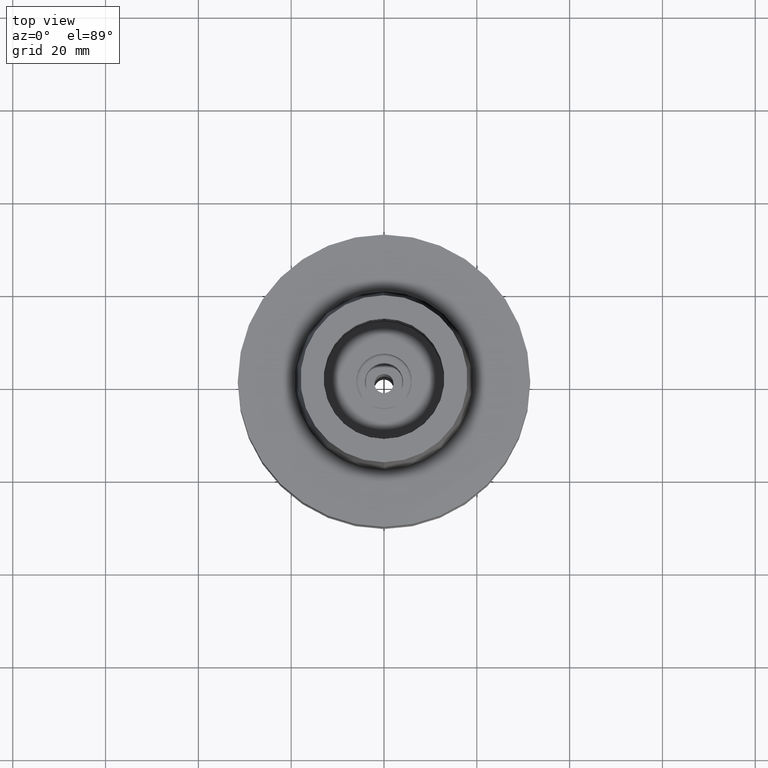
[diagram: clean part render]
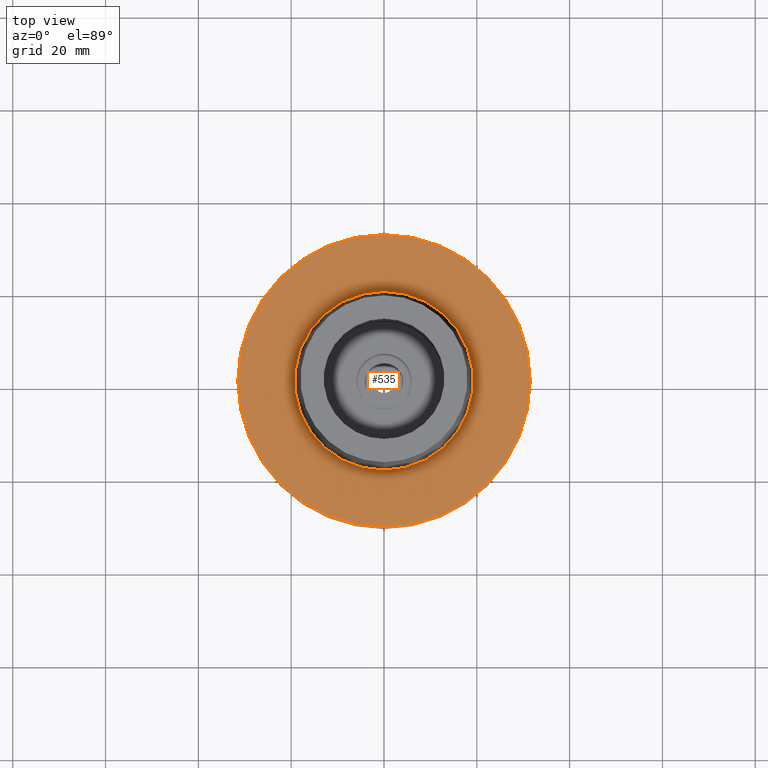
[diagram: same view with one face highlighted and labeled with its STEP entity id]
A machine part, top view. The second image highlights one B-rep face of the part: STEP entity #535.
In plain terms, the highlighted planar face has unit normal (0, 0, 1).
Its self-contained STEP definition (entity closure, byte-faithful):
#23 = EDGE_LOOP ( 'NONE', ( #2075, #1552 ) ) ;
#180 = CIRCLE ( 'NONE', #2668, 31.50000000000000000 ) ;
#184 = CIRCLE ( 'NONE', #1445, 31.50000000000000000 ) ;
#242 = DIRECTION ( 'NONE',  ( 0.0000000000000000000, 0.0000000000000000000, -1.000000000000000000 ) ) ;
#349 = CARTESIAN_POINT ( 'NONE',  ( 0.0000000000000000000, 31.50000000000000000, 1.705302565823999875E-13 ) ) ;
#535 = ADVANCED_FACE ( 'NONE', ( #690, #1974 ), #2398, .T. ) ;
#559 = DIRECTION ( 'NONE',  ( 0.0000000000000000000, -1.000000000000000000, 0.0000000000000000000 ) ) ;
#690 = FACE_OUTER_BOUND ( 'NONE', #828, .T. ) ;
#828 = EDGE_LOOP ( 'NONE', ( #1559, #2602 ) ) ;
#931 = CARTESIAN_POINT ( 'NONE',  ( 0.0000000000000000000, -19.24999954280000125, 2.664535259100000578E-13 ) ) ;
#972 = VERTEX_POINT ( 'NONE', #1027 ) ;
#1027 = CARTESIAN_POINT ( 'NONE',  ( 0.0000000000000000000, -31.50000000000000000, 1.705302565823999875E-13 ) ) ;
#1092 = VERTEX_POINT ( 'NONE', #1130 ) ;
#1130 = CARTESIAN_POINT ( 'NONE',  ( 0.0000000000000000000, 19.24999954280000125, 2.664535259100000578E-13 ) ) ;
#1251 = AXIS2_PLACEMENT_3D ( 'NONE', #1780, #2608, #1548 ) ;
#1253 = CIRCLE ( 'NONE', #1660, 19.24999954280000125 ) ;
#1279 = EDGE_CURVE ( 'NONE', #2609, #1092, #1253, .T. ) ;
#1445 = AXIS2_PLACEMENT_3D ( 'NONE', #2429, #242, #2629 ) ;
#1459 = CARTESIAN_POINT ( 'NONE',  ( 0.0000000000000000000, 0.0000000000000000000, 3.979039320256999774E-13 ) ) ;
#1548 = DIRECTION ( 'NONE',  ( 1.000000000000000000, 0.0000000000000000000, 0.0000000000000000000 ) ) ;
#1552 = ORIENTED_EDGE ( 'NONE', *, *, #1279, .F. ) ;
#1559 = ORIENTED_EDGE ( 'NONE', *, *, #2643, .F. ) ;
#1660 = AXIS2_PLACEMENT_3D ( 'NONE', #1841, #2713, #2027 ) ;
#1694 = CARTESIAN_POINT ( 'NONE',  ( 0.0000000000000000000, 0.0000000000000000000, 1.705302565823999875E-13 ) ) ;
#1780 = CARTESIAN_POINT ( 'NONE',  ( 0.0000000000000000000, 0.0000000000000000000, 0.0000000000000000000 ) ) ;
#1841 = CARTESIAN_POINT ( 'NONE',  ( 0.0000000000000000000, 0.0000000000000000000, 3.979039320256999774E-13 ) ) ;
#1847 = CIRCLE ( 'NONE', #2171, 19.24999954280000125 ) ;
#1905 = EDGE_CURVE ( 'NONE', #972, #2166, #180, .T. ) ;
#1974 = FACE_BOUND ( 'NONE', #23, .T. ) ;
#2027 = DIRECTION ( 'NONE',  ( 0.0000000000000000000, -1.000000000000000000, 0.0000000000000000000 ) ) ;
#2075 = ORIENTED_EDGE ( 'NONE', *, *, #2456, .F. ) ;
#2166 = VERTEX_POINT ( 'NONE', #349 ) ;
#2171 = AXIS2_PLACEMENT_3D ( 'NONE', #1459, #2331, #2358 ) ;
#2331 = DIRECTION ( 'NONE',  ( 0.0000000000000000000, 0.0000000000000000000, 1.000000000000000000 ) ) ;
#2358 = DIRECTION ( 'NONE',  ( 0.0000000000000000000, 1.000000000000000000, 0.0000000000000000000 ) ) ;
#2398 = PLANE ( 'NONE',  #1251 ) ;
#2429 = CARTESIAN_POINT ( 'NONE',  ( 0.0000000000000000000, 0.0000000000000000000, 1.705302565823999875E-13 ) ) ;
#2456 = EDGE_CURVE ( 'NONE', #1092, #2609, #1847, .T. ) ;
#2556 = DIRECTION ( 'NONE',  ( 0.0000000000000000000, 0.0000000000000000000, -1.000000000000000000 ) ) ;
#2602 = ORIENTED_EDGE ( 'NONE', *, *, #1905, .F. ) ;
#2608 = DIRECTION ( 'NONE',  ( 0.0000000000000000000, 0.0000000000000000000, 1.000000000000000000 ) ) ;
#2609 = VERTEX_POINT ( 'NONE', #931 ) ;
#2629 = DIRECTION ( 'NONE',  ( 0.0000000000000000000, 1.000000000000000000, 0.0000000000000000000 ) ) ;
#2643 = EDGE_CURVE ( 'NONE', #2166, #972, #184, .T. ) ;
#2668 = AXIS2_PLACEMENT_3D ( 'NONE', #1694, #2556, #559 ) ;
#2713 = DIRECTION ( 'NONE',  ( 0.0000000000000000000, 0.0000000000000000000, 1.000000000000000000 ) ) ;